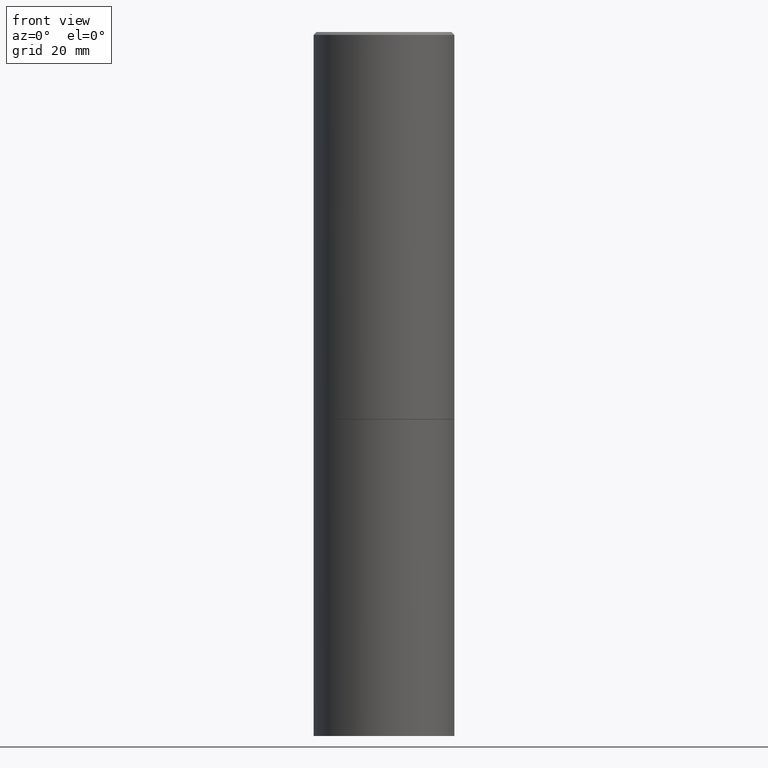
[diagram: clean part render]
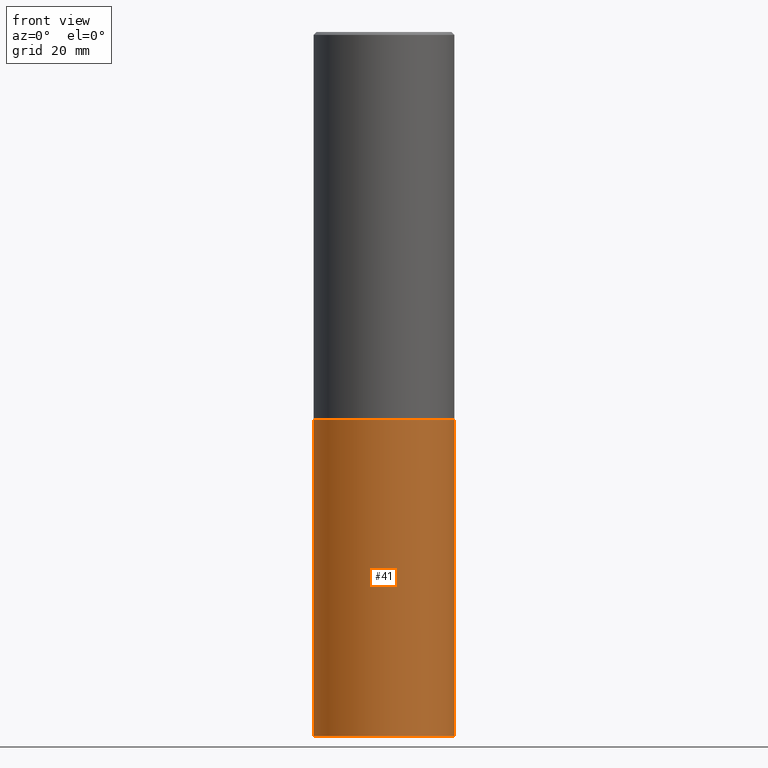
[diagram: same view with one face highlighted and labeled with its STEP entity id]
A machine part, front view. The second image highlights one B-rep face of the part: STEP entity #41.
In plain terms, the highlighted cylindrical surface (partial cylindrical patch) has radius 12.7 mm, axis along (-0, 0, 1).
Its self-contained STEP definition (entity closure, byte-faithful):
#6 = VERTEX_POINT ( 'NONE', #264 ) ;
#11 = LINE ( 'NONE', #102, #341 ) ;
#16 = CARTESIAN_POINT ( 'NONE',  ( 0.5000000000000000000, -2.094888803305886324E-14, -5.000000000000000000 ) ) ;
#41 = ADVANCED_FACE ( 'NONE', ( #148 ), #115, .T. ) ;
#42 = LINE ( 'NONE', #127, #136 ) ;
#43 = CIRCLE ( 'NONE', #290, 0.5000000000000000000 ) ;
#56 = DIRECTION ( 'NONE',  ( -2.445468806185136597E-29, 3.491481338843145583E-15, 1.000000000000000000 ) ) ;
#62 = CARTESIAN_POINT ( 'NONE',  ( -0.5000000000000000000, -9.976776509216688154E-15, -5.000000000000000000 ) ) ;
#85 = ORIENTED_EDGE ( 'NONE', *, *, #204, .T. ) ;
#102 = CARTESIAN_POINT ( 'NONE',  ( -0.5000000000000000000, 3.552713678800500929E-15, -2.459467545127452891E-29 ) ) ;
#105 = DIRECTION ( 'NONE',  ( 1.000000000000000000, -6.982962677686266711E-15, 0.000000000000000000 ) ) ;
#106 = ORIENTED_EDGE ( 'NONE', *, *, #251, .F. ) ;
#112 = DIRECTION ( 'NONE',  ( -2.445468806185136597E-29, 3.491481338843145583E-15, 1.000000000000000000 ) ) ;
#115 = CYLINDRICAL_SURFACE ( 'NONE', #214, 0.5000000000000000000 ) ;
#119 = AXIS2_PLACEMENT_3D ( 'NONE', #137, #250, #105 ) ;
#127 = CARTESIAN_POINT ( 'NONE',  ( 0.5000000000000000000, -3.491481338843133355E-15, 2.438088387897967896E-29 ) ) ;
#136 = VECTOR ( 'NONE', #321, 39.37007874015748143 ) ;
#137 = CARTESIAN_POINT ( 'NONE',  ( 6.725039217009124520E-29, -9.601573681818649859E-15, -2.750000000000000000 ) ) ;
#148 = FACE_OUTER_BOUND ( 'NONE', #332, .T. ) ;
#156 = VERTEX_POINT ( 'NONE', #62 ) ;
#173 = DIRECTION ( 'NONE',  ( 1.000000000000000000, -6.982962677686266711E-15, 4.876176775795935793E-29 ) ) ;
#181 = VERTEX_POINT ( 'NONE', #353 ) ;
#182 = EDGE_CURVE ( 'NONE', #156, #181, #11, .T. ) ;
#189 = DIRECTION ( 'NONE',  ( -2.445468806185136877E-29, 3.491481338843145188E-15, 1.000000000000000000 ) ) ;
#204 = EDGE_CURVE ( 'NONE', #209, #6, #42, .T. ) ;
#209 = VERTEX_POINT ( 'NONE', #16 ) ;
#214 = AXIS2_PLACEMENT_3D ( 'NONE', #229, #56, #173 ) ;
#224 = DIRECTION ( 'NONE',  ( 1.000000000000000000, -6.982962677686266711E-15, 0.000000000000000000 ) ) ;
#229 = CARTESIAN_POINT ( 'NONE',  ( 0.000000000000000000, 0.000000000000000000, 0.000000000000000000 ) ) ;
#250 = DIRECTION ( 'NONE',  ( -2.445468806185136597E-29, 3.491481338843145583E-15, 1.000000000000000000 ) ) ;
#251 = EDGE_CURVE ( 'NONE', #181, #6, #280, .T. ) ;
#264 = CARTESIAN_POINT ( 'NONE',  ( 0.5000000000000000000, -1.309305502066178321E-14, -2.750000000000000000 ) ) ;
#268 = EDGE_CURVE ( 'NONE', #156, #209, #43, .T. ) ;
#280 = CIRCLE ( 'NONE', #119, 0.5000000000000000000 ) ;
#290 = AXIS2_PLACEMENT_3D ( 'NONE', #327, #112, #224 ) ;
#321 = DIRECTION ( 'NONE',  ( -2.445468806185136877E-29, 3.491481338843145188E-15, 1.000000000000000000 ) ) ;
#327 = CARTESIAN_POINT ( 'NONE',  ( 1.222734403092568523E-28, -1.745740669421572989E-14, -5.000000000000000000 ) ) ;
#332 = EDGE_LOOP ( 'NONE', ( #340, #363, #85, #106 ) ) ;
#340 = ORIENTED_EDGE ( 'NONE', *, *, #182, .F. ) ;
#341 = VECTOR ( 'NONE', #189, 39.37007874015748143 ) ;
#353 = CARTESIAN_POINT ( 'NONE',  ( -0.5000000000000000000, -9.976776509216688154E-15, -2.750000000000000000 ) ) ;
#363 = ORIENTED_EDGE ( 'NONE', *, *, #268, .T. ) ;